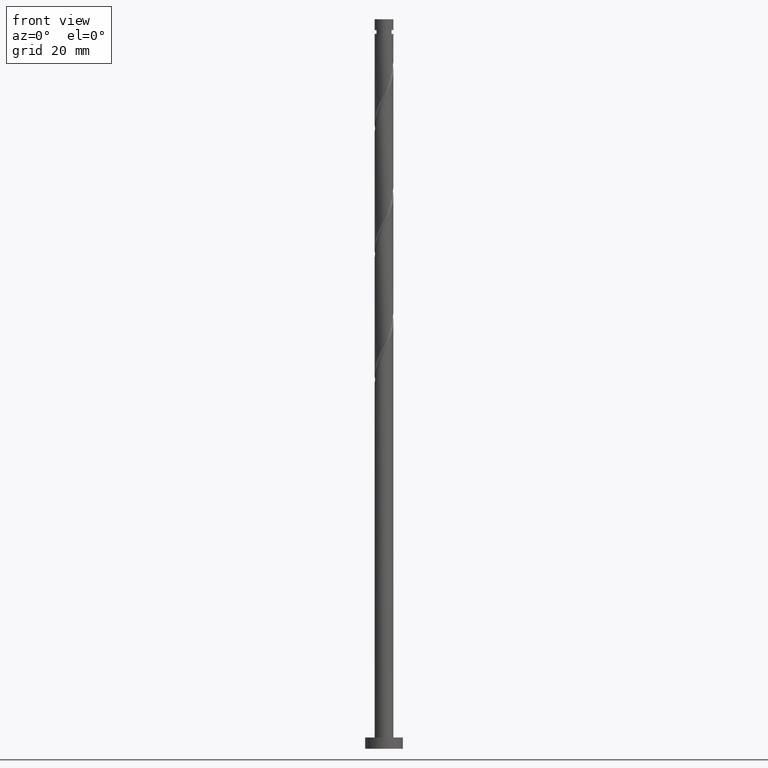
[diagram: clean part render]
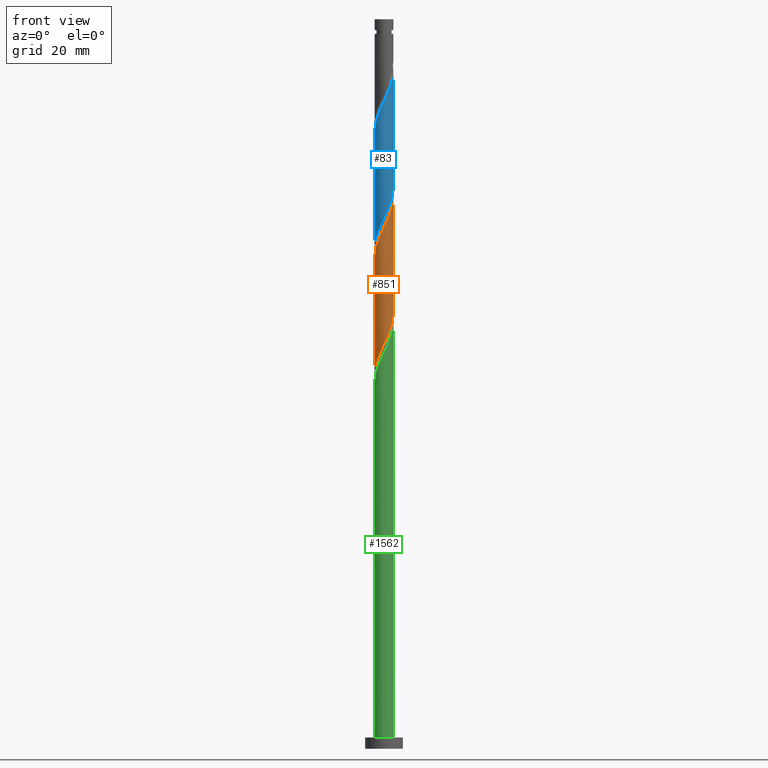
[diagram: same view with three faces highlighted in distinct colors, each labeled with its STEP entity id]
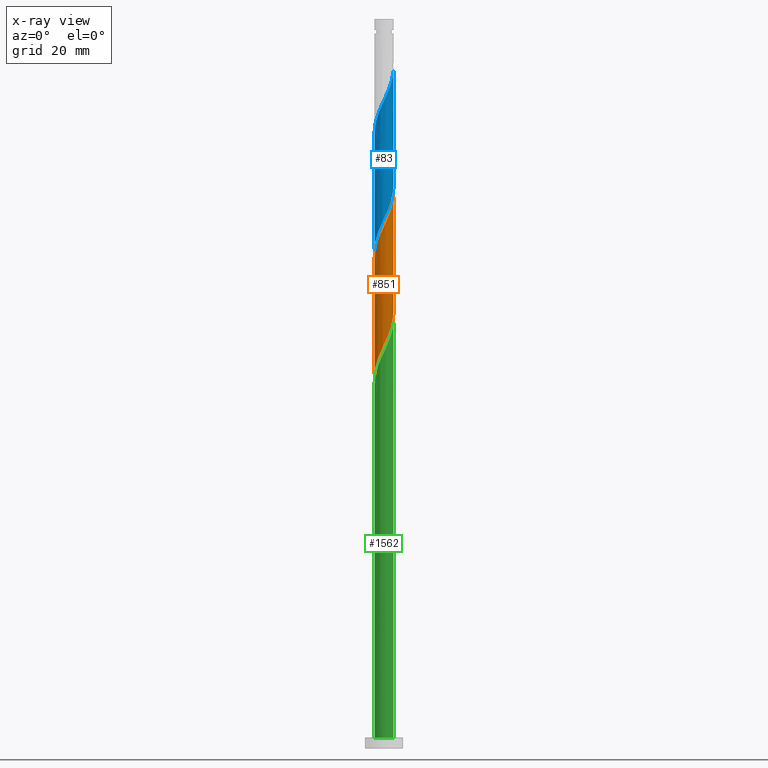
[diagram: x-ray of the same camera — body ghosted, the three highlighted faces saturated]
A machine part, front view with three faces highlighted in distinct colors.
The next image is the same camera in x-ray (body ghosted, the three faces saturated) — at least one of them is partly hidden behind the body in this view.
Their STEP definitions:

[orange] entity #851 — the highlighted cylindrical surface (edge-blend (fillet) strip) has radius 2.5 mm, axis along (-0, -0, -1).
#2 = DIRECTION ( 'NONE',  ( -0.000000000000000000, -0.000000000000000000, -1.000000000000000000 ) ) ;
#86 = CARTESIAN_POINT ( 'NONE',  ( -0.1749450994641920942, -2.515496290581585193, 106.9562221327085609 ) ) ;
#95 = CARTESIAN_POINT ( 'NONE',  ( -2.500000000000000444, 3.342170823149074243E-15, 98.99201101014085680 ) ) ;
#117 = CARTESIAN_POINT ( 'NONE',  ( -1.655842198490353967, -1.873015379995218721, 103.4839999104863608 ) ) ;
#155 = CARTESIAN_POINT ( 'NONE',  ( -1.873015379995222052, -1.655842198490354633, 134.0395554660418895 ) ) ;
#163 = DIRECTION ( 'NONE',  ( -1.000000000000000000, 0.000000000000000000, 0.000000000000000000 ) ) ;
#164 = CARTESIAN_POINT ( 'NONE',  ( 1.114648691668403968, -2.237757425227750119, 140.9839999104863182 ) ) ;
#228 = CARTESIAN_POINT ( 'NONE',  ( 2.500000000000001332, -0.2512594538148025247, 115.1252513076182709 ) ) ;
#250 = CARTESIAN_POINT ( 'NONE',  ( -2.265956240501270980, -1.106241244887206321, 101.4006665771530180 ) ) ;
#261 = CARTESIAN_POINT ( 'NONE',  ( 0.7941578015096460996, -2.370509098548530869, 109.0395554660418753 ) ) ;
#277 = CARTESIAN_POINT ( 'NONE',  ( -0.7941578015096490972, -2.370509098548532645, 136.8173332438196326 ) ) ;
#286 = CARTESIAN_POINT ( 'NONE',  ( -2.500000000000003553, -2.250544558764799277E-15, 130.1982110330540650 ) ) ;
#325 = VERTEX_POINT ( 'NONE', #1656 ) ;
#355 = CARTESIAN_POINT ( 'NONE',  ( 2.500000000000000888, 2.938418643171334019E-15, 115.6586776768075424 ) ) ;
#357 = ORIENTED_EDGE ( 'NONE', *, *, #653, .F. ) ;
#401 = CARTESIAN_POINT ( 'NONE',  ( 2.265956240501273200, -1.106241244887209874, 144.4562221327085751 ) ) ;
#413 = CARTESIAN_POINT ( 'NONE',  ( -0.4820743581320877102, -2.475061956595794754, 137.5117776882641181 ) ) ;
#426 = CARTESIAN_POINT ( 'NONE',  ( 2.500000000000003553, 6.355358388538470584E-16, 146.8648776997207506 ) ) ;
#484 = EDGE_LOOP ( 'NONE', ( #1264, #1464, #1235, #357 ) ) ;
#493 = CARTESIAN_POINT ( 'NONE',  ( 2.091011141037077081, -1.409255045694378206, 112.5117776882641607 ) ) ;
#525 = CARTESIAN_POINT ( 'NONE',  ( 2.449999999999999734, -0.4974937185533115924, 114.5951110215974467 ) ) ;
#558 = VECTOR ( 'NONE', #846, 1000.000000000000000 ) ;
#563 = CARTESIAN_POINT ( 'NONE',  ( -2.384503709418420048, -0.8200423376424313959, 131.9562221327085751 ) ) ;
#570 = CARTESIAN_POINT ( 'NONE',  ( -1.106241244887209874, -2.265956240501273200, 136.1228887993752892 ) ) ;
#621 = CARTESIAN_POINT ( 'NONE',  ( -2.495279123588686865, -0.1535646293339473223, 99.31733324381967520 ) ) ;
#629 = CARTESIAN_POINT ( 'NONE',  ( -2.370509098548530424, -0.7941578015096462106, 100.7062221327085609 ) ) ;
#653 = EDGE_CURVE ( 'NONE', #1548, #325, #1286, .T. ) ;
#691 = CARTESIAN_POINT ( 'NONE',  ( 0.4974937185533111483, -2.450000000000002842, 139.5951110215974040 ) ) ;
#701 = CARTESIAN_POINT ( 'NONE',  ( -1.655019618953362803, -1.902429351286330839, 134.7339999104863466 ) ) ;
#708 = CARTESIAN_POINT ( 'NONE',  ( 2.500000000000003997, -0.07685487914417529764, 146.7017140116926157 ) ) ;
#719 = CARTESIAN_POINT ( 'NONE',  ( 2.500000000000003553, 6.355358388538470584E-16, 146.8648776997207506 ) ) ;
#771 = CARTESIAN_POINT ( 'NONE',  ( 2.384503709418414275, -0.8200423376424329502, 113.9006665771530038 ) ) ;
#784 = CARTESIAN_POINT ( 'NONE',  ( -0.8200423376424320621, -2.384503709418415163, 105.5673332438196752 ) ) ;
#810 = CARTESIAN_POINT ( 'NONE',  ( -2.500000000000003553, -2.250544558764799277E-15, 130.1982110330540650 ) ) ;
#822 = CARTESIAN_POINT ( 'NONE',  ( 1.409255045694377317, -2.091011141037082410, 141.6784443549307753 ) ) ;
#832 = CARTESIAN_POINT ( 'NONE',  ( -2.450000000000002842, -0.4974937185533113704, 131.2617776882641465 ) ) ;
#839 = CARTESIAN_POINT ( 'NONE',  ( 2.370509098548532645, -0.7941578015096493193, 145.1506665771530322 ) ) ;
#846 = DIRECTION ( 'NONE',  ( -0.000000000000000000, -0.000000000000000000, -1.000000000000000000 ) ) ;
#851 = ADVANCED_FACE ( 'NONE', ( #1497 ), #977, .T. ) ;
#852 = CARTESIAN_POINT ( 'NONE',  ( 2.500000000000000444, 2.938418643171334019E-15, 115.6586776768075424 ) ) ;
#858 = CARTESIAN_POINT ( 'NONE',  ( 2.500000000000000000, 3.061616997868383141E-16, 193.4900000000000091 ) ) ;
#897 = CARTESIAN_POINT ( 'NONE',  ( -1.114648691668404634, -2.237757425227747010, 104.8728887993752323 ) ) ;
#906 = CARTESIAN_POINT ( 'NONE',  ( 1.106241244887206321, -2.265956240501270980, 109.7339999104863324 ) ) ;
#916 = CARTESIAN_POINT ( 'NONE',  ( 1.873015379995218721, -1.655842198490353967, 111.8173332438196752 ) ) ;
#927 = CARTESIAN_POINT ( 'NONE',  ( 0.1535646293339464619, -2.495279123588686865, 107.6506665771530038 ) ) ;
#951 = LINE ( 'NONE', #1236, #1738 ) ;
#964 = CARTESIAN_POINT ( 'NONE',  ( 2.084192795893800909, -1.380630431920286449, 143.7617776882641465 ) ) ;
#977 = CYLINDRICAL_SURFACE ( 'NONE', #1424, 2.500000000000000000 ) ;
#1028 = CARTESIAN_POINT ( 'NONE',  ( 2.237757425227745234, -1.114648691668405522, 113.2062221327085609 ) ) ;
#1038 = CARTESIAN_POINT ( 'NONE',  ( -2.500000000000000444, -0.07685487914417769850, 99.15517469816900586 ) ) ;
#1073 = CARTESIAN_POINT ( 'NONE',  ( 0.1749450994641902069, -2.515496290581588301, 138.9006665771530322 ) ) ;
#1092 = CARTESIAN_POINT ( 'NONE',  ( 0.000000000000000000, 0.000000000000000000, 193.4900000000000091 ) ) ;
#1093 = CARTESIAN_POINT ( 'NONE',  ( -0.1535646293339487933, -2.495279123588690418, 138.2062221327085183 ) ) ;
#1102 = CARTESIAN_POINT ( 'NONE',  ( 0.8200423376424312849, -2.384503709418420048, 140.2895554660419180 ) ) ;
#1107 = DIRECTION ( 'NONE',  ( -0.000000000000000000, -0.000000000000000000, -1.000000000000000000 ) ) ;
#1165 = CARTESIAN_POINT ( 'NONE',  ( -2.475061956595791202, -0.4820743581320859339, 100.0117776882641039 ) ) ;
#1213 = CARTESIAN_POINT ( 'NONE',  ( -2.091011141037081966, -1.409255045694377984, 133.3451110215974609 ) ) ;
#1235 = ORIENTED_EDGE ( 'NONE', *, *, #1459, .T. ) ;
#1236 = CARTESIAN_POINT ( 'NONE',  ( -2.500000000000000000, 0.000000000000000000, 193.4900000000000091 ) ) ;
#1260 = LINE ( 'NONE', #858, #558 ) ;
#1264 = ORIENTED_EDGE ( 'NONE', *, *, #1638, .F. ) ;
#1286 =( BOUNDED_CURVE ( )  B_SPLINE_CURVE ( 2, ( #355, #228, #525, #771, #1028, #493, #916, #1560, #1592, #906, #261, #1449, #927, #86, #1461, #784, #897, #1305, #117, #1329, #1705, #250, #629, #1165, #621, #1038, #95 ),
 .UNSPECIFIED., .F., .T. ) 
 B_SPLINE_CURVE_WITH_KNOTS ( ( 3, 2, 2, 2, 2, 2, 2, 2, 2, 2, 2, 2, 2, 3 ),
 ( 0.8045317669814462391, 0.8125000000000000000, 0.8229166666666666297, 0.8333333333333333703, 0.8437500000000000000, 0.8541666666666666297, 0.8645833333333333703, 0.8750000000000000000, 0.8854166666666666297, 0.8958333333333333703, 0.9062500000000000000, 0.9166666666666666297, 0.9270833333333333703, 0.9295317669814464612 ),
 .UNSPECIFIED. ) 
 CURVE ( )  GEOMETRIC_REPRESENTATION_ITEM ( )  RATIONAL_B_SPLINE_CURVE ( ( 0.9062941362546484969, 0.9031415850403526902, 0.9090909090909282675, 0.9013135103398466352, 0.9090909090909282675, 0.9013135103398466352, 0.9090909090909282675, 0.9013135103398466352, 0.9090909090909282675, 0.9013135103398466352, 0.9090909090909282675, 0.9013135103398466352, 0.9090909090909282675, 0.9013135103398466352, 0.9090909090909282675, 0.9013135103398466352, 0.9090909090909282675, 0.9013135103398466352, 0.9090909090909282675, 0.9013135103398466352, 0.9090909090909282675, 0.9013135103398466352, 0.9090909090909282675, 0.9013135103398466352, 0.9090909090909282675, 0.9072628343904218795, 0.9062941362546483859 ) ) 
 REPRESENTATION_ITEM ( '' )  );
#1305 = CARTESIAN_POINT ( 'NONE',  ( -1.409255045694377539, -2.091011141037077969, 104.1784443549308179 ) ) ;
#1329 = CARTESIAN_POINT ( 'NONE',  ( -1.902429351286329728, -1.655019618953359473, 102.7895554660419037 ) ) ;
#1335 = CARTESIAN_POINT ( 'NONE',  ( 2.495279123588690418, -0.1535646293339500701, 146.5395554660418895 ) ) ;
#1343 =( BOUNDED_CURVE ( )  B_SPLINE_CURVE ( 2, ( #286, #1490, #832, #563, #1618, #1213, #155, #701, #1742, #570, #277, #413, #1093, #1073, #691, #1102, #164, #822, #1644, #1629, #964, #401, #839, #1357, #1335, #708, #426 ),
 .UNSPECIFIED., .F., .T. ) 
 B_SPLINE_CURVE_WITH_KNOTS ( ( 3, 2, 2, 2, 2, 2, 2, 2, 2, 2, 2, 2, 2, 3 ),
 ( 0.3045317669814465722, 0.3125000000000000000, 0.3229166666666666297, 0.3333333333333333703, 0.3437500000000000000, 0.3541666666666666297, 0.3645833333333333703, 0.3750000000000000000, 0.3854166666666666297, 0.3958333333333333703, 0.4062500000000000000, 0.4166666666666666297, 0.4270833333333333703, 0.4295317669814466277 ),
 .UNSPECIFIED. ) 
 CURVE ( )  GEOMETRIC_REPRESENTATION_ITEM ( )  RATIONAL_B_SPLINE_CURVE ( ( 0.9062941362546538260, 0.9031415850403584633, 0.9090909090909338186, 0.9013135103398520753, 0.9090909090909338186, 0.9013135103398520753, 0.9090909090909338186, 0.9013135103398520753, 0.9090909090909338186, 0.9013135103398520753, 0.9090909090909338186, 0.9013135103398520753, 0.9090909090909338186, 0.9013135103398520753, 0.9090909090909338186, 0.9013135103398520753, 0.9090909090909338186, 0.9013135103398520753, 0.9090909090909338186, 0.9013135103398520753, 0.9090909090909338186, 0.9013135103398520753, 0.9090909090909338186, 0.9013135103398520753, 0.9090909090909338186, 0.9072628343904272086, 0.9062941362546537150 ) ) 
 REPRESENTATION_ITEM ( '' )  );
#1346 = VERTEX_POINT ( 'NONE', #810 ) ;
#1357 = CARTESIAN_POINT ( 'NONE',  ( 2.475061956595793866, -0.4820743581320889870, 145.8451110215974040 ) ) ;
#1424 = AXIS2_PLACEMENT_3D ( 'NONE', #1092, #1107, #163 ) ;
#1446 = EDGE_CURVE ( 'NONE', #1346, #1552, #1343, .T. ) ;
#1449 = CARTESIAN_POINT ( 'NONE',  ( 0.4820743581320852122, -2.475061956595791646, 108.3451110215974467 ) ) ;
#1459 = EDGE_CURVE ( 'NONE', #1346, #325, #951, .T. ) ;
#1461 = CARTESIAN_POINT ( 'NONE',  ( -0.4974937185533114814, -2.449999999999999734, 106.2617776882641039 ) ) ;
#1464 = ORIENTED_EDGE ( 'NONE', *, *, #1446, .F. ) ;
#1490 = CARTESIAN_POINT ( 'NONE',  ( -2.500000000000001332, -0.2512594538148117951, 130.7316374022433365 ) ) ;
#1497 = FACE_OUTER_BOUND ( 'NONE', #484, .T. ) ;
#1548 = VERTEX_POINT ( 'NONE', #852 ) ;
#1552 = VERTEX_POINT ( 'NONE', #719 ) ;
#1560 = CARTESIAN_POINT ( 'NONE',  ( 1.655019618953359251, -1.902429351286329728, 111.1228887993752323 ) ) ;
#1592 = CARTESIAN_POINT ( 'NONE',  ( 1.380630431920282231, -2.084192795893800021, 110.4284443549307895 ) ) ;
#1618 = CARTESIAN_POINT ( 'NONE',  ( -2.237757425227750119, -1.114648691668405078, 132.6506665771530322 ) ) ;
#1629 = CARTESIAN_POINT ( 'NONE',  ( 1.902429351286330839, -1.655019618953362803, 143.0673332438197178 ) ) ;
#1638 = EDGE_CURVE ( 'NONE', #1552, #1548, #1260, .T. ) ;
#1644 = CARTESIAN_POINT ( 'NONE',  ( 1.655842198490354633, -1.873015379995222496, 142.3728887993752323 ) ) ;
#1656 = CARTESIAN_POINT ( 'NONE',  ( -2.500000000000000444, 3.342170823149074243E-15, 98.99201101014085680 ) ) ;
#1705 = CARTESIAN_POINT ( 'NONE',  ( -2.084192795893799133, -1.380630431920282675, 102.0951110215974467 ) ) ;
#1738 = VECTOR ( 'NONE', #2, 1000.000000000000000 ) ;
#1742 = CARTESIAN_POINT ( 'NONE',  ( -1.380630431920285117, -2.084192795893801797, 135.4284443549307753 ) ) ;

[blue] entity #83 — the highlighted cylindrical surface (edge-blend (fillet) strip) has radius 2.5 mm, axis along (-0, -0, -1).
#53 = CARTESIAN_POINT ( 'NONE',  ( 0.1749450994641902069, -2.515496290581588301, 172.2339999104864035 ) ) ;
#55 = CARTESIAN_POINT ( 'NONE',  ( 2.237757425227745234, -1.114648691668405522, 146.5395554660418895 ) ) ;
#64 = CARTESIAN_POINT ( 'NONE',  ( 2.500000000000003109, -2.093529822106789721E-16, 180.1982110330540934 ) ) ;
#67 = CARTESIAN_POINT ( 'NONE',  ( -0.4974937185533114814, -2.449999999999999734, 139.5951110215974609 ) ) ;
#78 = VERTEX_POINT ( 'NONE', #619 ) ;
#83 = ADVANCED_FACE ( 'NONE', ( #1693 ), #879, .T. ) ;
#176 = CARTESIAN_POINT ( 'NONE',  ( -2.500000000000000000, 0.000000000000000000, 193.4900000000000091 ) ) ;
#195 = CARTESIAN_POINT ( 'NONE',  ( 1.114648691668403968, -2.237757425227750119, 174.3173332438196894 ) ) ;
#198 = CARTESIAN_POINT ( 'NONE',  ( 1.873015379995218721, -1.655842198490353967, 145.1506665771530606 ) ) ;
#208 = ORIENTED_EDGE ( 'NONE', *, *, #1162, .F. ) ;
#219 = CARTESIAN_POINT ( 'NONE',  ( -2.500000000000003109, 2.063622253219550189E-15, 163.5315443663873793 ) ) ;
#308 = CARTESIAN_POINT ( 'NONE',  ( -2.475061956595791202, -0.4820743581320859339, 133.3451110215975177 ) ) ;
#310 =( BOUNDED_CURVE ( )  B_SPLINE_CURVE ( 2, ( #330, #736, #447, #869, #55, #1017, #198, #1396, #1529, #579, #316, #1276, #595, #1418, #67, #1669, #610, #1143, #1684, #468, #1654, #439, #988, #308, #722, #342, #751 ),
 .UNSPECIFIED., .F., .T. ) 
 B_SPLINE_CURVE_WITH_KNOTS ( ( 3, 2, 2, 2, 2, 2, 2, 2, 2, 2, 2, 2, 2, 3 ),
 ( 0.5545317669814457950, 0.5625000000000000000, 0.5729166666666666297, 0.5833333333333333703, 0.5937500000000000000, 0.6041666666666666297, 0.6145833333333333703, 0.6250000000000000000, 0.6354166666666666297, 0.6458333333333333703, 0.6562500000000000000, 0.6666666666666666297, 0.6770833333333333703, 0.6795317669814463502 ),
 .UNSPECIFIED. ) 
 CURVE ( )  GEOMETRIC_REPRESENTATION_ITEM ( )  RATIONAL_B_SPLINE_CURVE ( ( 0.9062941362546489410, 0.9031415850403524681, 0.9090909090909282675, 0.9013135103398466352, 0.9090909090909282675, 0.9013135103398466352, 0.9090909090909282675, 0.9013135103398466352, 0.9090909090909282675, 0.9013135103398466352, 0.9090909090909282675, 0.9013135103398466352, 0.9090909090909282675, 0.9013135103398466352, 0.9090909090909282675, 0.9013135103398466352, 0.9090909090909282675, 0.9013135103398466352, 0.9090909090909282675, 0.9013135103398466352, 0.9090909090909282675, 0.9013135103398466352, 0.9090909090909282675, 0.9013135103398466352, 0.9090909090909282675, 0.9072628343904219905, 0.9062941362546484969 ) ) 
 REPRESENTATION_ITEM ( '' )  );
#316 = CARTESIAN_POINT ( 'NONE',  ( 0.7941578015096460996, -2.370509098548530869, 142.3728887993752039 ) ) ;
#318 = CARTESIAN_POINT ( 'NONE',  ( -2.500000000000003109, 2.063622253219549794E-15, 163.5315443663873793 ) ) ;
#327 = CARTESIAN_POINT ( 'NONE',  ( -1.873015379995222052, -1.655842198490354633, 167.3728887993752039 ) ) ;
#330 = CARTESIAN_POINT ( 'NONE',  ( 2.500000000000000444, 2.938418643171334413E-15, 148.9920110101409136 ) ) ;
#341 = AXIS2_PLACEMENT_3D ( 'NONE', #885, #1270, #478 ) ;
#342 = CARTESIAN_POINT ( 'NONE',  ( -2.500000000000000888, -0.07685487914418118183, 132.4885080315023345 ) ) ;
#398 = EDGE_CURVE ( 'NONE', #505, #78, #1477, .T. ) ;
#439 = CARTESIAN_POINT ( 'NONE',  ( -2.265956240501270980, -1.106241244887206321, 134.7339999104863466 ) ) ;
#442 = CARTESIAN_POINT ( 'NONE',  ( -2.237757425227750119, -1.114648691668405078, 165.9839999104863182 ) ) ;
#447 = CARTESIAN_POINT ( 'NONE',  ( 2.449999999999999734, -0.4974937185533115924, 147.9284443549308321 ) ) ;
#466 = CARTESIAN_POINT ( 'NONE',  ( 1.409255045694377317, -2.091011141037082410, 175.0117776882641181 ) ) ;
#468 = CARTESIAN_POINT ( 'NONE',  ( -1.902429351286329728, -1.655019618953359473, 136.1228887993752608 ) ) ;
#475 = VERTEX_POINT ( 'NONE', #1661 ) ;
#478 = DIRECTION ( 'NONE',  ( -1.000000000000000000, 0.000000000000000000, 0.000000000000000000 ) ) ;
#505 = VERTEX_POINT ( 'NONE', #219 ) ;
#579 = CARTESIAN_POINT ( 'NONE',  ( 1.106241244887206321, -2.265956240501270980, 143.0673332438196894 ) ) ;
#582 = CARTESIAN_POINT ( 'NONE',  ( 2.500000000000002665, -0.07685487914419178446, 180.0350473450258733 ) ) ;
#593 = CARTESIAN_POINT ( 'NONE',  ( 1.655842198490354633, -1.873015379995222496, 175.7062221327085467 ) ) ;
#595 = CARTESIAN_POINT ( 'NONE',  ( 0.1535646293339464619, -2.495279123588686865, 140.9839999104863466 ) ) ;
#606 = CARTESIAN_POINT ( 'NONE',  ( 1.902429351286330839, -1.655019618953362803, 176.4006665771530606 ) ) ;
#610 = CARTESIAN_POINT ( 'NONE',  ( -1.114648691668404634, -2.237757425227747010, 138.2062221327085467 ) ) ;
#619 = CARTESIAN_POINT ( 'NONE',  ( 2.500000000000003109, -2.093529822106789721E-16, 180.1982110330540934 ) ) ;
#722 = CARTESIAN_POINT ( 'NONE',  ( -2.495279123588686865, -0.1535646293339473223, 132.6506665771530322 ) ) ;
#732 = EDGE_CURVE ( 'NONE', #78, #1390, #1230, .T. ) ;
#734 = CARTESIAN_POINT ( 'NONE',  ( -2.500000000000006217, -0.2512594538147902012, 164.0649707355766225 ) ) ;
#736 = CARTESIAN_POINT ( 'NONE',  ( 2.500000000000003553, -0.2512594538147886469, 148.4585846409516989 ) ) ;
#740 = CARTESIAN_POINT ( 'NONE',  ( 2.084192795893800909, -1.380630431920286449, 177.0951110215974325 ) ) ;
#751 = CARTESIAN_POINT ( 'NONE',  ( -2.500000000000000888, 3.342170823149074637E-15, 132.3253443434741996 ) ) ;
#775 = VECTOR ( 'NONE', #1250, 1000.000000000000000 ) ;
#863 = CARTESIAN_POINT ( 'NONE',  ( -1.106241244887209874, -2.265956240501273200, 169.4562221327085467 ) ) ;
#869 = CARTESIAN_POINT ( 'NONE',  ( 2.384503709418414275, -0.8200423376424329502, 147.2339999104863466 ) ) ;
#874 = CARTESIAN_POINT ( 'NONE',  ( -0.4820743581320877102, -2.475061956595794754, 170.8451110215974609 ) ) ;
#879 = CYLINDRICAL_SURFACE ( 'NONE', #341, 2.500000000000000000 ) ;
#885 = CARTESIAN_POINT ( 'NONE',  ( 0.000000000000000000, 0.000000000000000000, 193.4900000000000091 ) ) ;
#988 = CARTESIAN_POINT ( 'NONE',  ( -2.370509098548530424, -0.7941578015096462106, 134.0395554660418895 ) ) ;
#998 = CARTESIAN_POINT ( 'NONE',  ( -2.091011141037081966, -1.409255045694377984, 166.6784443549308037 ) ) ;
#1005 = CARTESIAN_POINT ( 'NONE',  ( 2.370509098548532645, -0.7941578015096493193, 178.4839999104862898 ) ) ;
#1017 = CARTESIAN_POINT ( 'NONE',  ( 2.091011141037077081, -1.409255045694378206, 145.8451110215974609 ) ) ;
#1022 = CARTESIAN_POINT ( 'NONE',  ( -2.450000000000002842, -0.4974937185533113704, 164.5951110215974325 ) ) ;
#1050 = ORIENTED_EDGE ( 'NONE', *, *, #1120, .T. ) ;
#1083 = ORIENTED_EDGE ( 'NONE', *, *, #398, .F. ) ;
#1120 = EDGE_CURVE ( 'NONE', #505, #475, #1388, .T. ) ;
#1141 = CARTESIAN_POINT ( 'NONE',  ( 2.475061956595793866, -0.4820743581320889870, 179.1784443549308037 ) ) ;
#1143 = CARTESIAN_POINT ( 'NONE',  ( -1.409255045694377539, -2.091011141037077969, 137.5117776882640896 ) ) ;
#1162 = EDGE_CURVE ( 'NONE', #1390, #475, #310, .T. ) ;
#1230 = LINE ( 'NONE', #1362, #1676 ) ;
#1250 = DIRECTION ( 'NONE',  ( -0.000000000000000000, -0.000000000000000000, -1.000000000000000000 ) ) ;
#1266 = CARTESIAN_POINT ( 'NONE',  ( -2.384503709418420048, -0.8200423376424313959, 165.2895554660418895 ) ) ;
#1270 = DIRECTION ( 'NONE',  ( -0.000000000000000000, -0.000000000000000000, -1.000000000000000000 ) ) ;
#1276 = CARTESIAN_POINT ( 'NONE',  ( 0.4820743581320852122, -2.475061956595791646, 141.6784443549307753 ) ) ;
#1281 = CARTESIAN_POINT ( 'NONE',  ( 2.265956240501273200, -1.106241244887209874, 177.7895554660418611 ) ) ;
#1340 = DIRECTION ( 'NONE',  ( -0.000000000000000000, -0.000000000000000000, -1.000000000000000000 ) ) ;
#1362 = CARTESIAN_POINT ( 'NONE',  ( 2.500000000000000000, 3.061616997868383141E-16, 193.4900000000000091 ) ) ;
#1374 = CARTESIAN_POINT ( 'NONE',  ( 2.500000000000000444, 2.938418643171334019E-15, 148.9920110101409136 ) ) ;
#1388 = LINE ( 'NONE', #176, #775 ) ;
#1390 = VERTEX_POINT ( 'NONE', #1374 ) ;
#1396 = CARTESIAN_POINT ( 'NONE',  ( 1.655019618953359251, -1.902429351286329728, 144.4562221327085751 ) ) ;
#1401 = CARTESIAN_POINT ( 'NONE',  ( 2.495279123588690418, -0.1535646293339500701, 179.8728887993752323 ) ) ;
#1409 = CARTESIAN_POINT ( 'NONE',  ( 0.8200423376424312849, -2.384503709418420048, 173.6228887993752608 ) ) ;
#1416 = CARTESIAN_POINT ( 'NONE',  ( 0.4974937185533111483, -2.450000000000002842, 172.9284443549307753 ) ) ;
#1418 = CARTESIAN_POINT ( 'NONE',  ( -0.1749450994641920942, -2.515496290581585193, 140.2895554660419180 ) ) ;
#1477 =( BOUNDED_CURVE ( )  B_SPLINE_CURVE ( 2, ( #318, #734, #1022, #1266, #442, #998, #327, #1525, #1680, #863, #1554, #874, #1547, #53, #1416, #1409, #195, #466, #593, #606, #740, #1281, #1005, #1141, #1401, #582, #64 ),
 .UNSPECIFIED., .F., .T. ) 
 B_SPLINE_CURVE_WITH_KNOTS ( ( 3, 2, 2, 2, 2, 2, 2, 2, 2, 2, 2, 2, 2, 3 ),
 ( 0.5545317669814457950, 0.5625000000000000000, 0.5729166666666667407, 0.5833333333333332593, 0.5937500000000000000, 0.6041666666666667407, 0.6145833333333332593, 0.6250000000000000000, 0.6354166666666667407, 0.6458333333333332593, 0.6562500000000000000, 0.6666666666666667407, 0.6770833333333332593, 0.6795317669814460171 ),
 .UNSPECIFIED. ) 
 CURVE ( )  GEOMETRIC_REPRESENTATION_ITEM ( )  RATIONAL_B_SPLINE_CURVE ( ( 0.9062941362546544921, 0.9031415850403580192, 0.9090909090909338186, 0.9013135103398520753, 0.9090909090909338186, 0.9013135103398520753, 0.9090909090909338186, 0.9013135103398520753, 0.9090909090909338186, 0.9013135103398520753, 0.9090909090909338186, 0.9013135103398520753, 0.9090909090909338186, 0.9013135103398520753, 0.9090909090909338186, 0.9013135103398520753, 0.9090909090909338186, 0.9013135103398520753, 0.9090909090909338186, 0.9013135103398520753, 0.9090909090909338186, 0.9013135103398520753, 0.9090909090909338186, 0.9013135103398520753, 0.9090909090909338186, 0.9072628343904277637, 0.9062941362546543811 ) ) 
 REPRESENTATION_ITEM ( '' )  );
#1525 = CARTESIAN_POINT ( 'NONE',  ( -1.655019618953362803, -1.902429351286330839, 168.0673332438196610 ) ) ;
#1529 = CARTESIAN_POINT ( 'NONE',  ( 1.380630431920282231, -2.084192795893800021, 143.7617776882641181 ) ) ;
#1547 = CARTESIAN_POINT ( 'NONE',  ( -0.1535646293339487933, -2.495279123588690418, 171.5395554660418895 ) ) ;
#1554 = CARTESIAN_POINT ( 'NONE',  ( -0.7941578015096490972, -2.370509098548532645, 170.1506665771530322 ) ) ;
#1608 = ORIENTED_EDGE ( 'NONE', *, *, #732, .F. ) ;
#1654 = CARTESIAN_POINT ( 'NONE',  ( -2.084192795893799133, -1.380630431920282675, 135.4284443549308037 ) ) ;
#1659 = EDGE_LOOP ( 'NONE', ( #1608, #1083, #1050, #208 ) ) ;
#1661 = CARTESIAN_POINT ( 'NONE',  ( -2.500000000000000444, 3.342170823149074243E-15, 132.3253443434741996 ) ) ;
#1669 = CARTESIAN_POINT ( 'NONE',  ( -0.8200423376424320621, -2.384503709418415163, 138.9006665771530038 ) ) ;
#1676 = VECTOR ( 'NONE', #1340, 1000.000000000000000 ) ;
#1680 = CARTESIAN_POINT ( 'NONE',  ( -1.380630431920285117, -2.084192795893801797, 168.7617776882640612 ) ) ;
#1684 = CARTESIAN_POINT ( 'NONE',  ( -1.655842198490353967, -1.873015379995218721, 136.8173332438196326 ) ) ;
#1693 = FACE_OUTER_BOUND ( 'NONE', #1659, .T. ) ;

[green] entity #1562 — the highlighted cylindrical surface (edge-blend (fillet) strip) has radius 2.5 mm, axis along (-0, -0, -1).
#37 = CYLINDRICAL_SURFACE ( 'NONE', #1238, 2.500000000000000000 ) ;
#74 = CARTESIAN_POINT ( 'NONE',  ( -2.500000000000003553, -0.2512594538148037460, 97.39830406890999370 ) ) ;
#81 = CARTESIAN_POINT ( 'NONE',  ( -2.500000000000003553, -2.250544558764799277E-15, 96.86487769972072215 ) ) ;
#112 = CARTESIAN_POINT ( 'NONE',  ( 2.500000000000003553, -0.07685487914418573374, 113.3683806783592161 ) ) ;
#120 = EDGE_CURVE ( 'NONE', #230, #1533, #1026, .T. ) ;
#133 = DIRECTION ( 'NONE',  ( -0.000000000000000000, -0.000000000000000000, -1.000000000000000000 ) ) ;
#158 = CARTESIAN_POINT ( 'NONE',  ( 2.500000000000003553, 6.355358388538470584E-16, 113.5315443663873936 ) ) ;
#191 = EDGE_LOOP ( 'NONE', ( #1407, #882, #446, #1146 ) ) ;
#206 = VECTOR ( 'NONE', #133, 1000.000000000000000 ) ;
#230 = VERTEX_POINT ( 'NONE', #158 ) ;
#233 = CARTESIAN_POINT ( 'NONE',  ( 2.084192795893800909, -1.380630431920286449, 110.4284443549307753 ) ) ;
#251 = EDGE_CURVE ( 'NONE', #700, #1533, #813, .T. ) ;
#294 = CARTESIAN_POINT ( 'NONE',  ( -2.500000000000000000, 0.000000000000000000, 193.4900000000000091 ) ) ;
#300 = CARTESIAN_POINT ( 'NONE',  ( 0.000000000000000000, 0.000000000000000000, 193.4900000000000091 ) ) ;
#351 = CARTESIAN_POINT ( 'NONE',  ( -1.380630431920285117, -2.084192795893801797, 102.0951110215974325 ) ) ;
#369 = CARTESIAN_POINT ( 'NONE',  ( 2.370509098548532645, -0.7941578015096493193, 111.8173332438196752 ) ) ;
#446 = ORIENTED_EDGE ( 'NONE', *, *, #1431, .T. ) ;
#476 = CARTESIAN_POINT ( 'NONE',  ( 0.4974937185533111483, -2.450000000000002842, 106.2617776882641181 ) ) ;
#487 = CARTESIAN_POINT ( 'NONE',  ( 2.500000000000003553, 6.355358388538470584E-16, 113.5315443663873793 ) ) ;
#498 = CARTESIAN_POINT ( 'NONE',  ( -2.450000000000002842, -0.4974937185533113704, 97.92844435493077526 ) ) ;
#540 = LINE ( 'NONE', #294, #206 ) ;
#624 = CARTESIAN_POINT ( 'NONE',  ( -0.1535646293339487933, -2.495279123588690418, 104.8728887993752465 ) ) ;
#635 = CARTESIAN_POINT ( 'NONE',  ( 1.114648691668403968, -2.237757425227750119, 107.6506665771530464 ) ) ;
#658 = CARTESIAN_POINT ( 'NONE',  ( -1.106241244887209874, -2.265956240501273200, 102.7895554660419180 ) ) ;
#663 = CARTESIAN_POINT ( 'NONE',  ( -2.500000000000000000, 0.000000000000000000, 3.000000000000000000 ) ) ;
#668 = CARTESIAN_POINT ( 'NONE',  ( 2.500000000000000000, 3.061616997868383141E-16, 3.000000000000000000 ) ) ;
#700 = VERTEX_POINT ( 'NONE', #663 ) ;
#778 = CARTESIAN_POINT ( 'NONE',  ( 2.265956240501273200, -1.106241244887209874, 111.1228887993752608 ) ) ;
#813 = CIRCLE ( 'NONE', #1199, 2.500000000000000000 ) ;
#825 = CARTESIAN_POINT ( 'NONE',  ( 0.000000000000000000, 0.000000000000000000, 3.000000000000000000 ) ) ;
#834 = DIRECTION ( 'NONE',  ( 0.000000000000000000, 0.000000000000000000, 1.000000000000000000 ) ) ;
#882 = ORIENTED_EDGE ( 'NONE', *, *, #1201, .F. ) ;
#903 = CARTESIAN_POINT ( 'NONE',  ( -0.7941578015096490972, -2.370509098548532645, 103.4839999104863182 ) ) ;
#912 = CARTESIAN_POINT ( 'NONE',  ( 0.8200423376424312849, -2.384503709418420048, 106.9562221327085894 ) ) ;
#985 = DIRECTION ( 'NONE',  ( -1.000000000000000000, 0.000000000000000000, 0.000000000000000000 ) ) ;
#1024 = CARTESIAN_POINT ( 'NONE',  ( 2.475061956595793866, -0.4820743581320889870, 112.5117776882641465 ) ) ;
#1026 = LINE ( 'NONE', #1558, #1486 ) ;
#1053 = CARTESIAN_POINT ( 'NONE',  ( 1.409255045694377317, -2.091011141037082410, 108.3451110215974609 ) ) ;
#1064 = CARTESIAN_POINT ( 'NONE',  ( -1.873015379995222052, -1.655842198490354633, 100.7062221327085609 ) ) ;
#1112 = VERTEX_POINT ( 'NONE', #1543 ) ;
#1146 = ORIENTED_EDGE ( 'NONE', *, *, #251, .T. ) ;
#1159 = CARTESIAN_POINT ( 'NONE',  ( 1.902429351286330839, -1.655019618953362803, 109.7339999104863040 ) ) ;
#1169 = CARTESIAN_POINT ( 'NONE',  ( 1.655842198490354633, -1.873015379995222496, 109.0395554660418895 ) ) ;
#1199 = AXIS2_PLACEMENT_3D ( 'NONE', #825, #834, #1640 ) ;
#1201 = EDGE_CURVE ( 'NONE', #1112, #230, #1647, .T. ) ;
#1238 = AXIS2_PLACEMENT_3D ( 'NONE', #300, #1248, #985 ) ;
#1248 = DIRECTION ( 'NONE',  ( -0.000000000000000000, -0.000000000000000000, -1.000000000000000000 ) ) ;
#1301 = CARTESIAN_POINT ( 'NONE',  ( -2.091011141037081966, -1.409255045694377984, 100.0117776882641039 ) ) ;
#1314 = CARTESIAN_POINT ( 'NONE',  ( 2.495279123588690418, -0.1535646293339500701, 113.2062221327085467 ) ) ;
#1385 = FACE_OUTER_BOUND ( 'NONE', #191, .T. ) ;
#1407 = ORIENTED_EDGE ( 'NONE', *, *, #120, .F. ) ;
#1414 = DIRECTION ( 'NONE',  ( -0.000000000000000000, -0.000000000000000000, -1.000000000000000000 ) ) ;
#1431 = EDGE_CURVE ( 'NONE', #1112, #700, #540, .T. ) ;
#1486 = VECTOR ( 'NONE', #1414, 1000.000000000000000 ) ;
#1533 = VERTEX_POINT ( 'NONE', #668 ) ;
#1543 = CARTESIAN_POINT ( 'NONE',  ( -2.500000000000003553, -2.250544558764799277E-15, 96.86487769972072215 ) ) ;
#1558 = CARTESIAN_POINT ( 'NONE',  ( 2.500000000000000000, 3.061616997868383141E-16, 193.4900000000000091 ) ) ;
#1562 = ADVANCED_FACE ( 'NONE', ( #1385 ), #37, .T. ) ;
#1587 = CARTESIAN_POINT ( 'NONE',  ( -2.384503709418420048, -0.8200423376424313959, 98.62288879937523234 ) ) ;
#1640 = DIRECTION ( 'NONE',  ( 1.000000000000000000, 0.000000000000000000, 0.000000000000000000 ) ) ;
#1647 =( BOUNDED_CURVE ( )  B_SPLINE_CURVE ( 2, ( #81, #74, #498, #1587, #1733, #1301, #1064, #1700, #351, #658, #903, #1691, #624, #1710, #476, #912, #635, #1053, #1169, #1159, #233, #778, #369, #1024, #1314, #112, #487 ),
 .UNSPECIFIED., .F., .T. ) 
 B_SPLINE_CURVE_WITH_KNOTS ( ( 3, 2, 2, 2, 2, 2, 2, 2, 2, 2, 2, 2, 2, 3 ),
 ( 0.05453176698144631546, 0.06250000000000000000, 0.07291666666666662966, 0.08333333333333337034, 0.09375000000000000000, 0.1041666666666666297, 0.1145833333333333703, 0.1250000000000000000, 0.1354166666666666297, 0.1458333333333333703, 0.1562500000000000000, 0.1666666666666666297, 0.1770833333333333703, 0.1795317669814462946 ),
 .UNSPECIFIED. ) 
 CURVE ( )  GEOMETRIC_REPRESENTATION_ITEM ( )  RATIONAL_B_SPLINE_CURVE ( ( 0.9062941362546540480, 0.9031415850403582413, 0.9090909090909338186, 0.9013135103398520753, 0.9090909090909338186, 0.9013135103398520753, 0.9090909090909338186, 0.9013135103398520753, 0.9090909090909338186, 0.9013135103398520753, 0.9090909090909338186, 0.9013135103398520753, 0.9090909090909338186, 0.9013135103398520753, 0.9090909090909338186, 0.9013135103398520753, 0.9090909090909338186, 0.9013135103398520753, 0.9090909090909338186, 0.9013135103398520753, 0.9090909090909338186, 0.9013135103398520753, 0.9090909090909338186, 0.9013135103398520753, 0.9090909090909338186, 0.9072628343904275416, 0.9062941362546541590 ) ) 
 REPRESENTATION_ITEM ( '' )  );
#1691 = CARTESIAN_POINT ( 'NONE',  ( -0.4820743581320877102, -2.475061956595794754, 104.1784443549307895 ) ) ;
#1700 = CARTESIAN_POINT ( 'NONE',  ( -1.655019618953362803, -1.902429351286330839, 101.4006665771530322 ) ) ;
#1710 = CARTESIAN_POINT ( 'NONE',  ( 0.1749450994641902069, -2.515496290581588301, 105.5673332438196752 ) ) ;
#1733 = CARTESIAN_POINT ( 'NONE',  ( -2.237757425227750119, -1.114648691668405078, 99.31733324381967520 ) ) ;